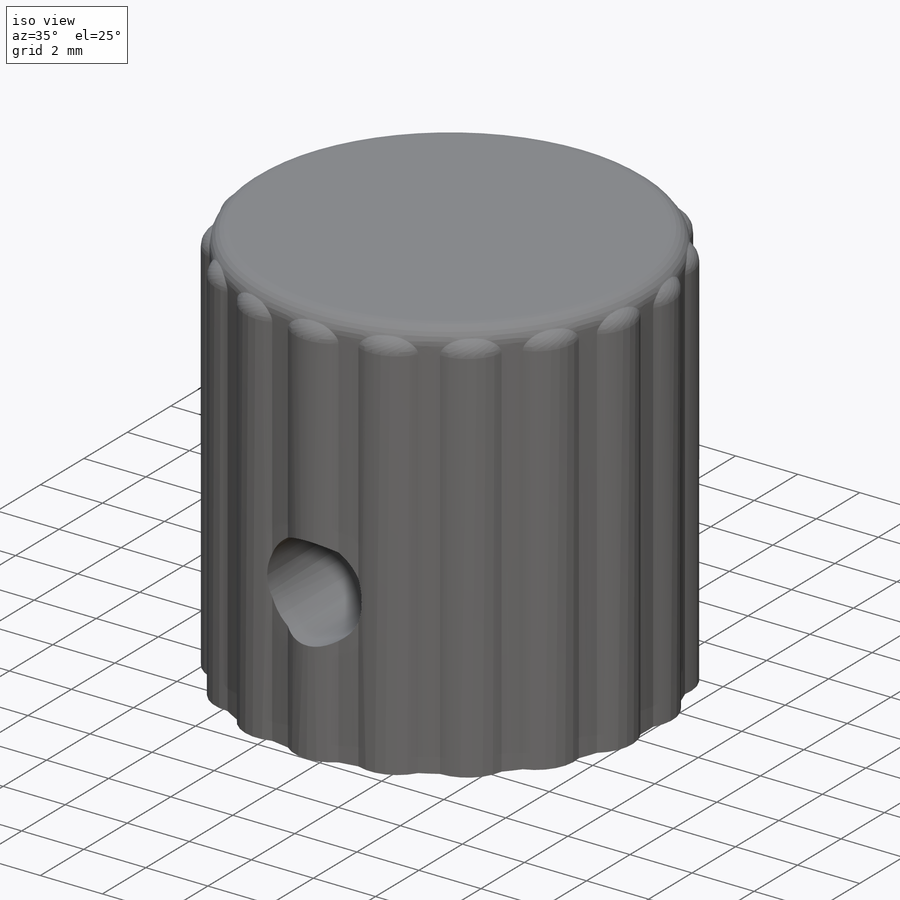
[diagram: iso view]
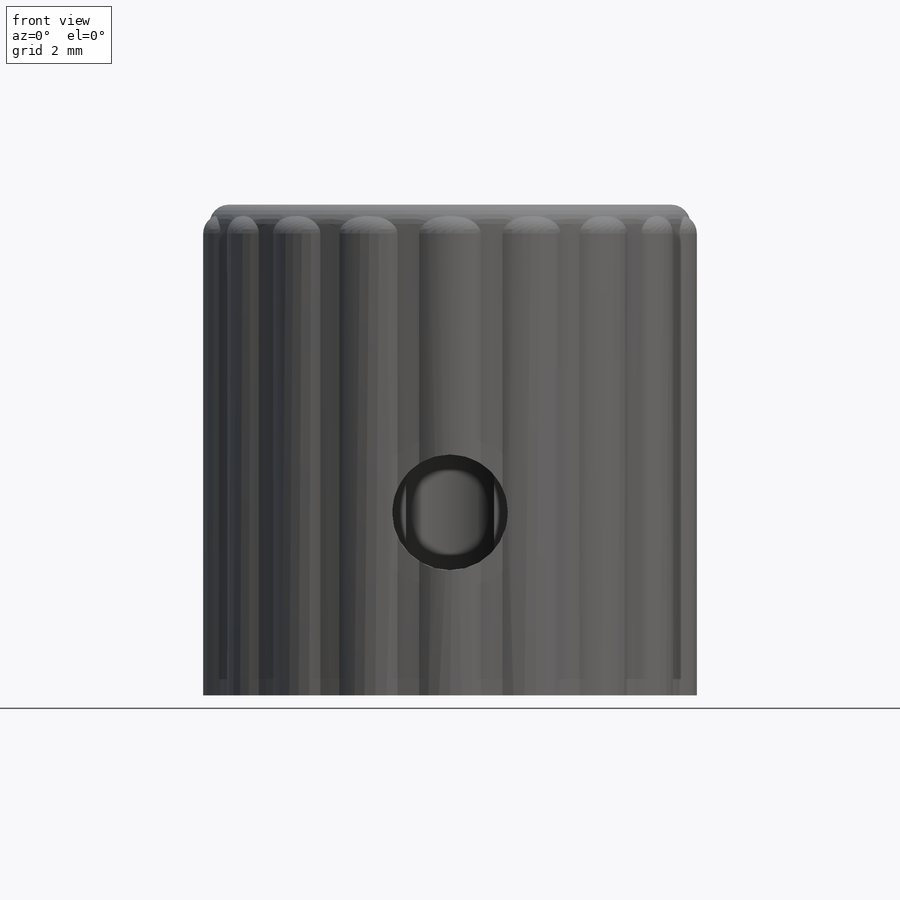
[diagram: front view]
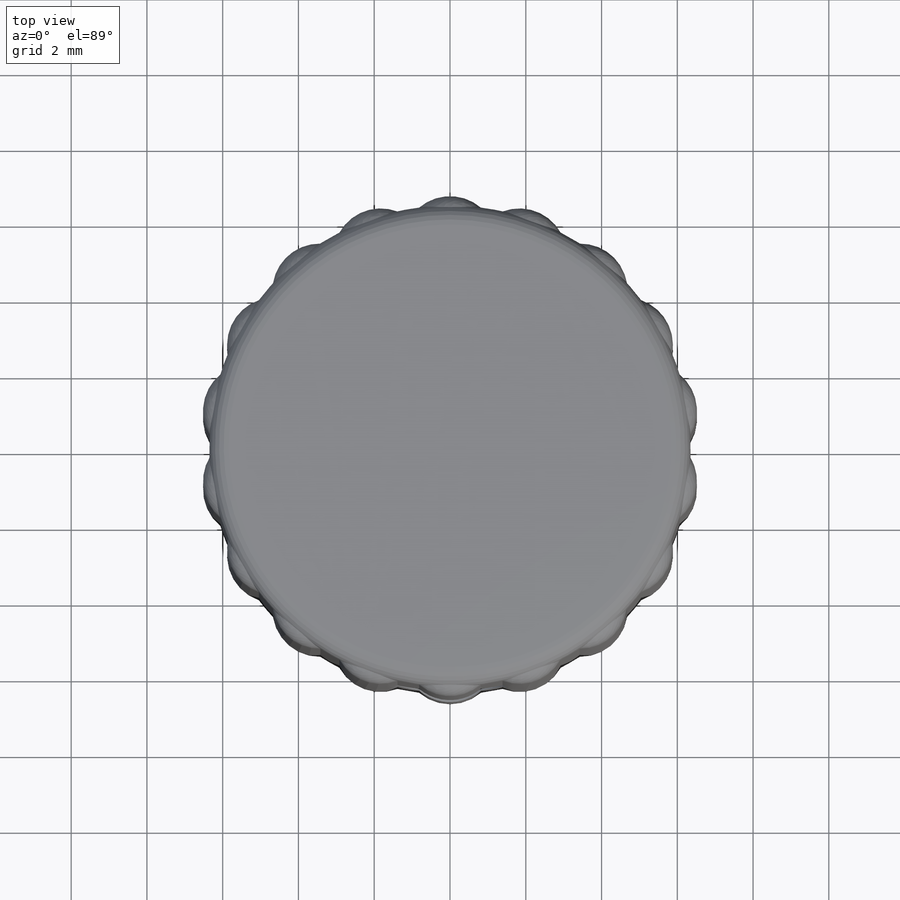
[diagram: top view]
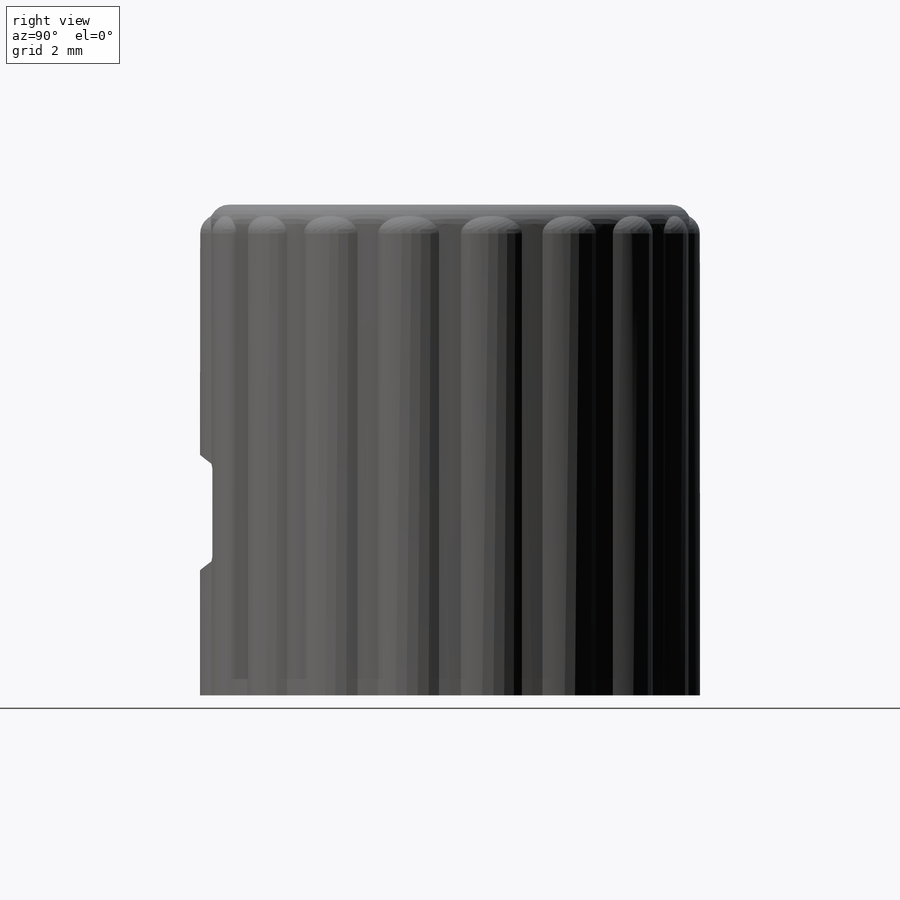
[diagram: right view]
SOLIDWORKS PART (.sldprt)
format: sldprt  version: not decoded by parser v0  size: 401,920 bytes
history: native  units: mm
features: sketch x5, cut_extrude x3, plane x2, fillet x2, material x1, revolve x1, extrude x1, pattern_circular x1 (+11 scaffold rows collapsed)
feature tree (27):
  scaffold x11  (default folders/planes/origin — collapsed)
  material  "Materiál <není určen>"
  sketch  "Sketch1"  dims[c1.D1=22.352mm c1.D2=22.352mm c2.D1=6.35mm c2.D2=12.954mm]
  revolve  "Revolve1"  Angle=360deg
  sketch  "Skica1"  dims[D1=11.938mm]
  cut_extrude  "Odebrat vysunutím1"  Depth=0.762mm
  sketch  "Skica2"  dims[D1=3.175mm D2=2.667mm]
  cut_extrude  "Odebrat vysunutím2"  Depth=10.414mm
  plane  "Rovina1"  Offset=0.254mm
  sketch  "Skica4"
  extrude  "Přidat vysunutím2"  [1 undecoded]
  pattern_circular  "Kruhové pole1"  Count=18 Angle=20deg
  fillet  "Zaoblit1"  Radius=0.508mm
  fillet  "Zaoblit2"  Radius=0.508mm
  plane  "Rovina2"  Offset=6.858mm
  sketch  "Skica5"  dims[c1.D1=~0.613374mm c1.D2=0.762mm c2.D1=4.826mm]
  cut_extrude  "Odebrat vysunutím3"  [1 undecoded]
decode coverage: 10 of 13 modeling features carry decoded parameters
note: ~ marks probable driven/reference dimensions
note: 2 parameter values undecoded
note: suppression state not decoded; provenance and decode notes live in map.json
